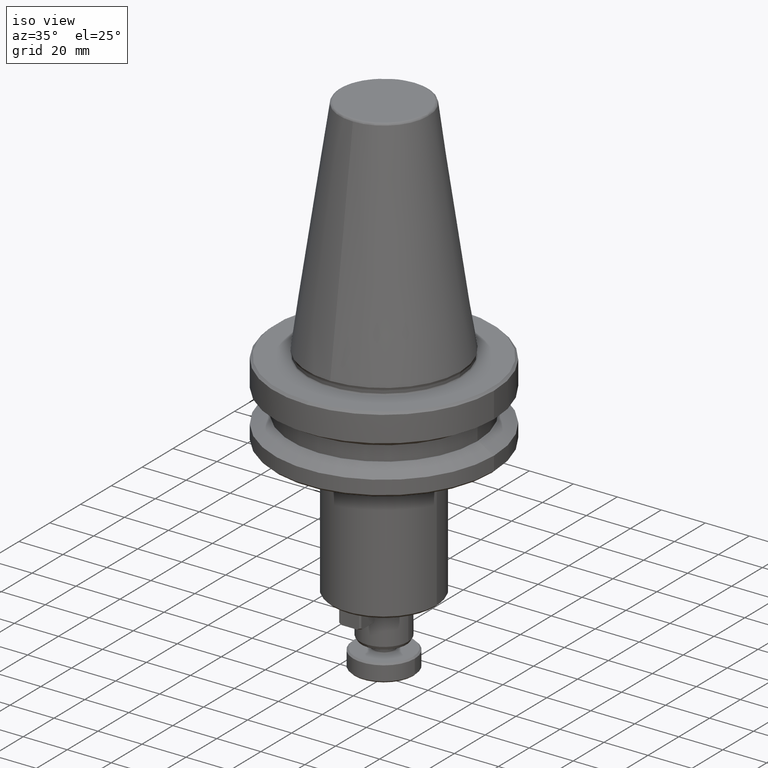
[diagram: clean part render]
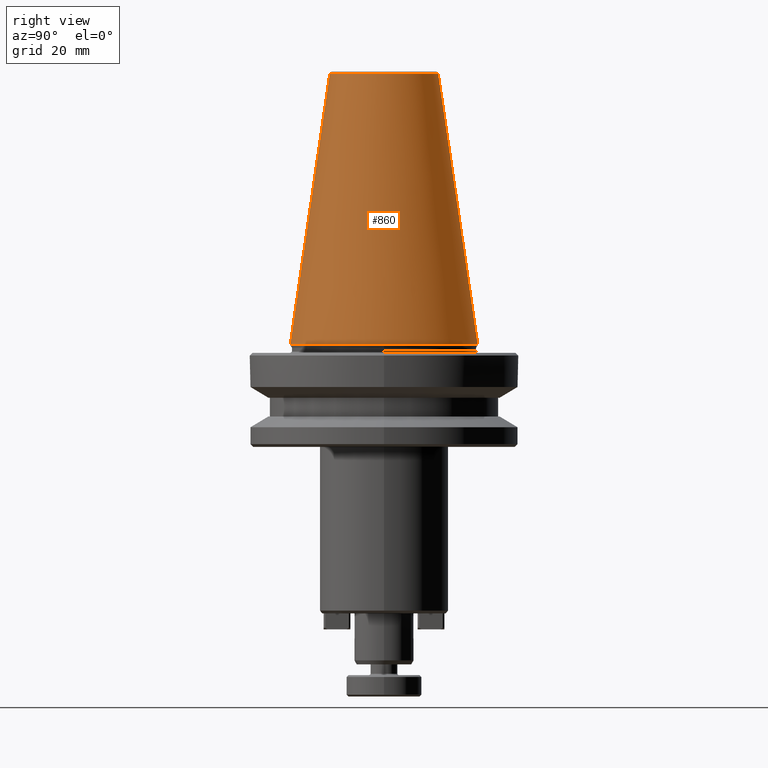
[diagram: tour spotlight — one face highlighted and labeled with its STEP entity id]
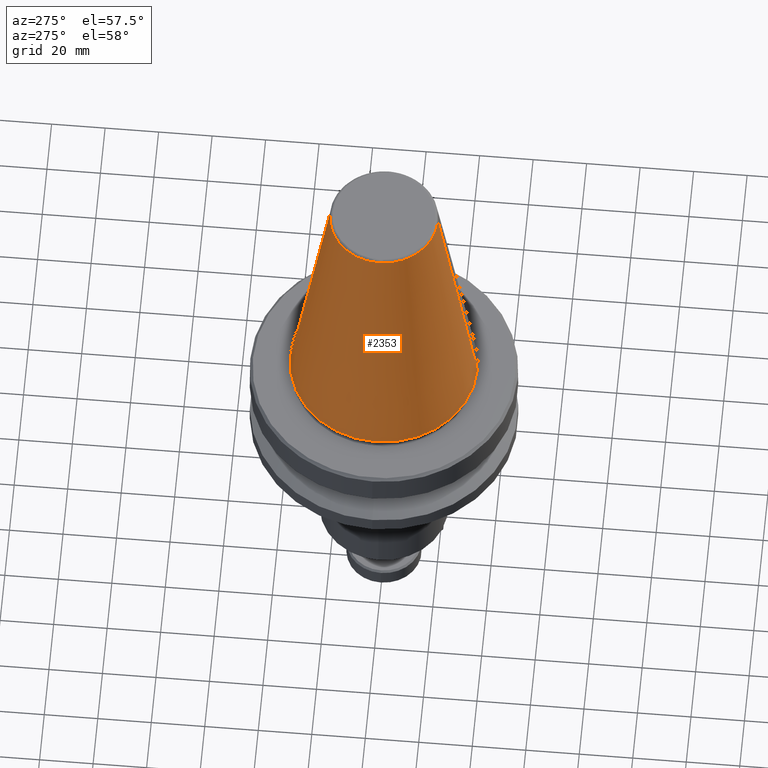
[diagram: tour spotlight — one face highlighted and labeled with its STEP entity id]
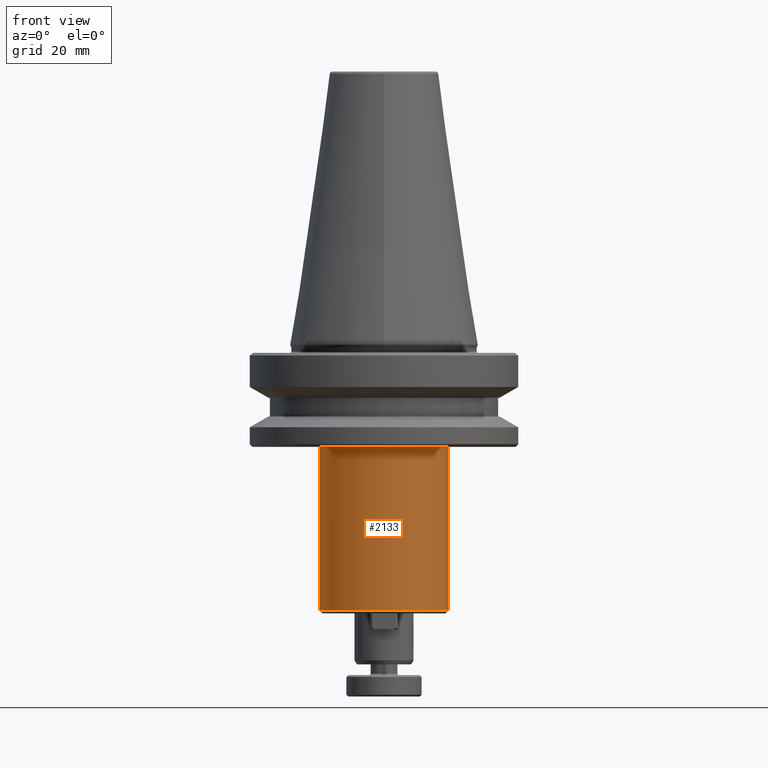
[diagram: tour spotlight — one face highlighted and labeled with its STEP entity id]
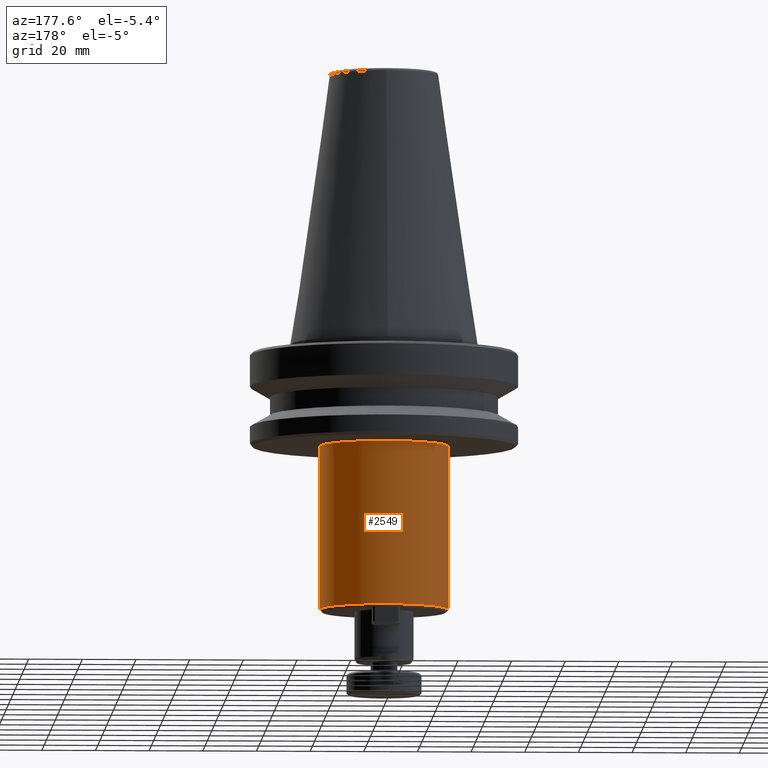
[diagram: tour spotlight — one face highlighted and labeled with its STEP entity id]
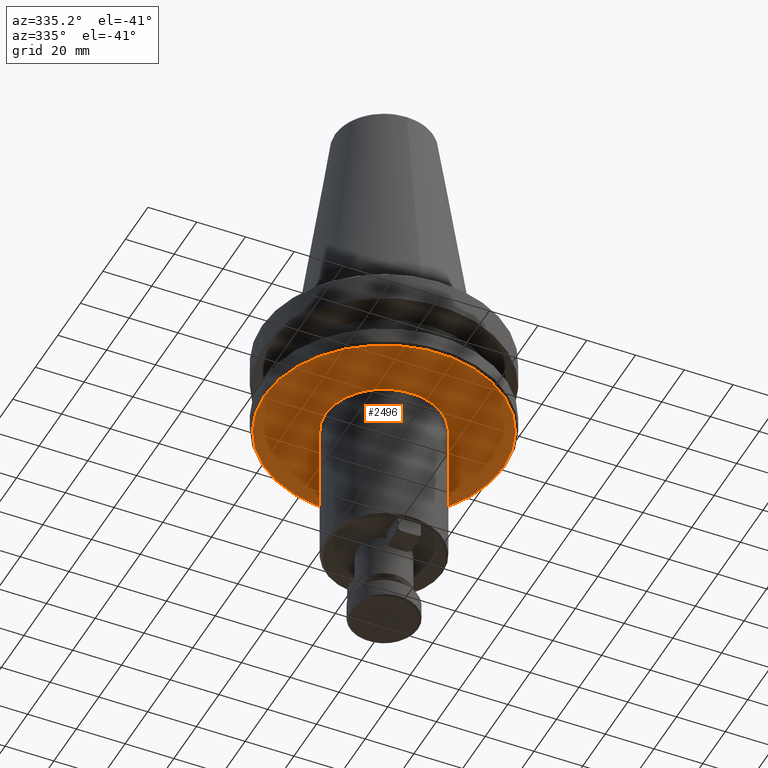
[diagram: tour spotlight — one face highlighted and labeled with its STEP entity id]
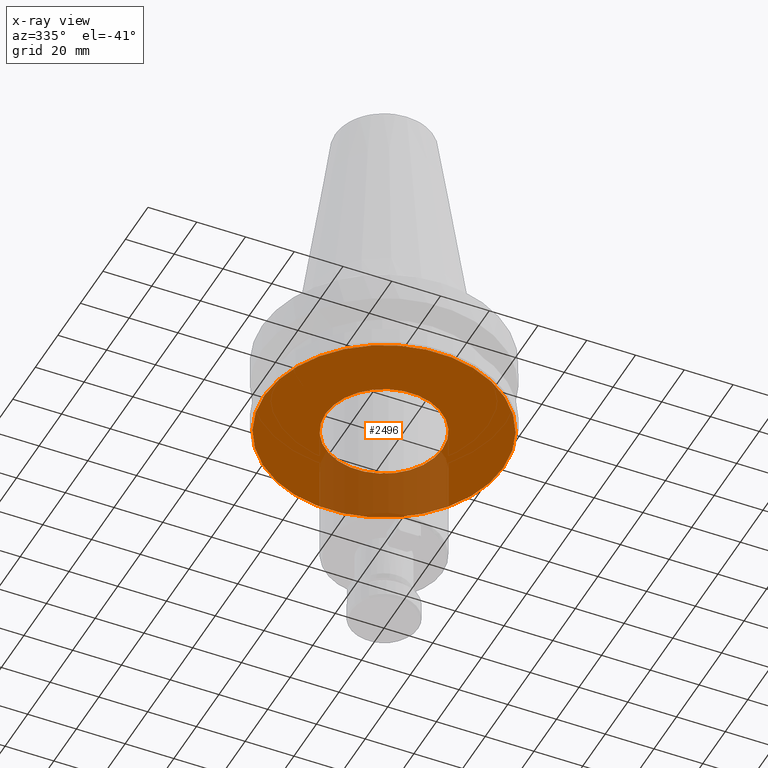
[diagram: x-ray of the same camera — body ghosted, this tour face saturated]
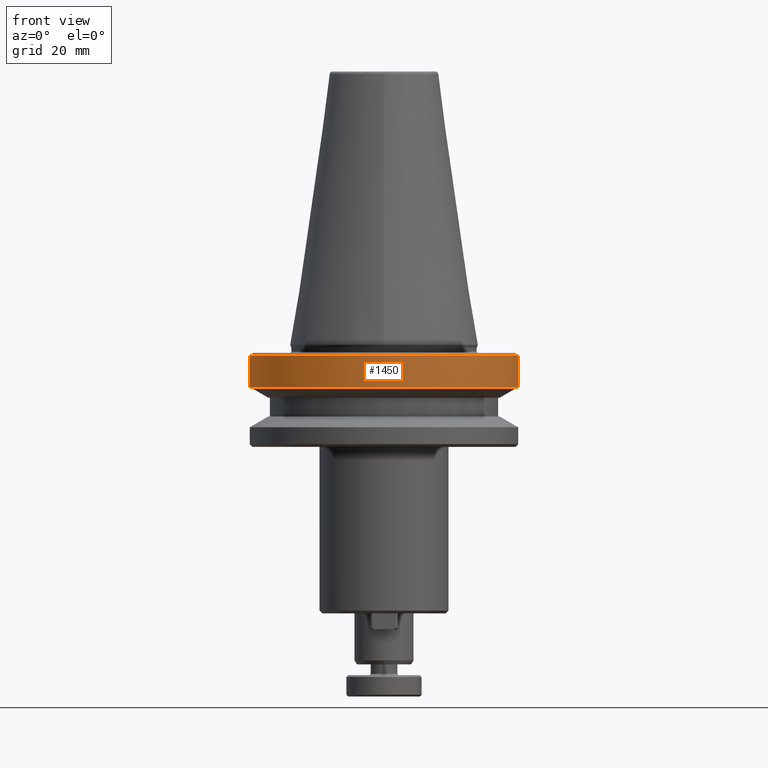
[diagram: tour spotlight — one face highlighted and labeled with its STEP entity id]
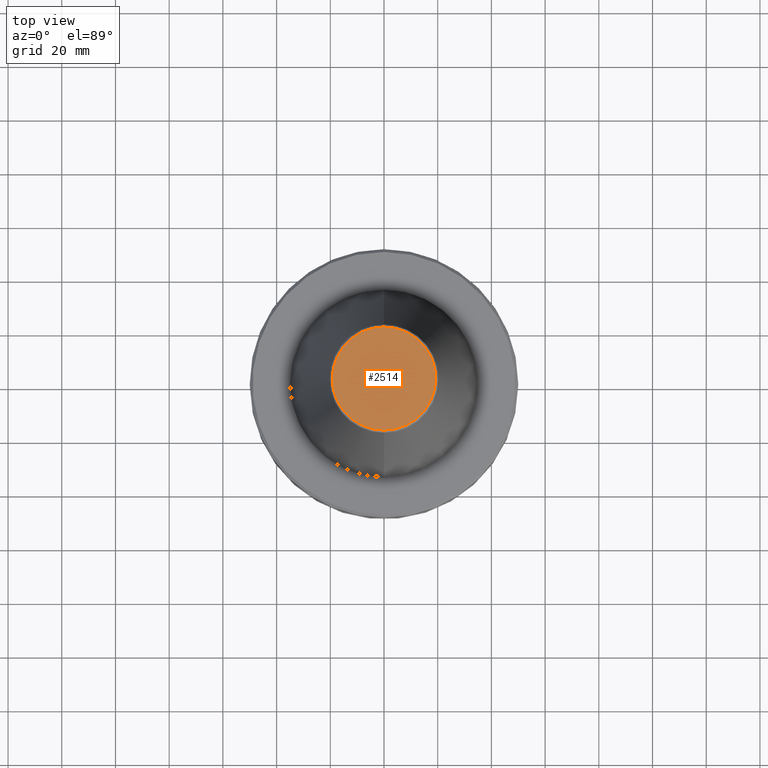
[diagram: tour spotlight — one face highlighted and labeled with its STEP entity id]
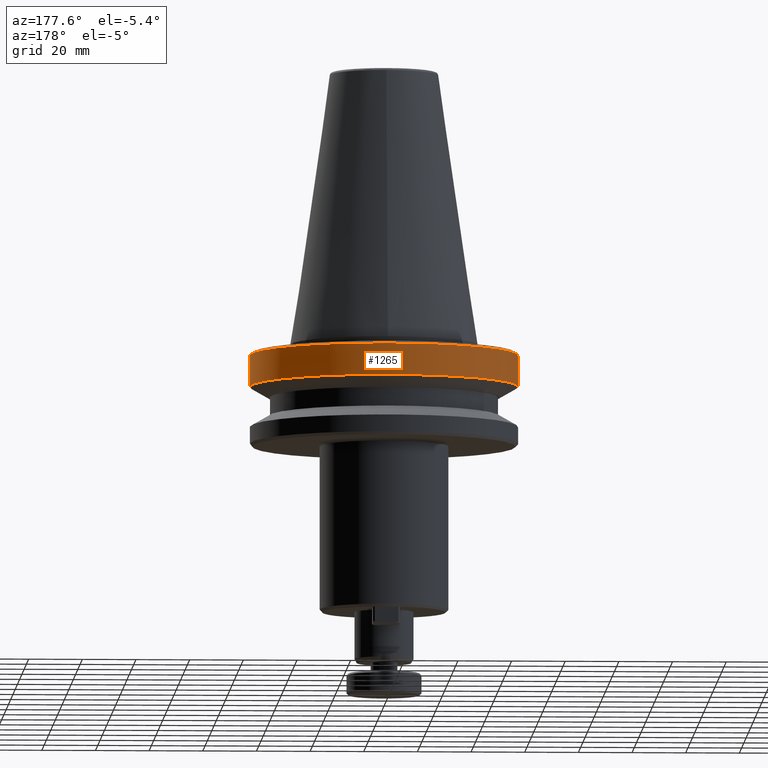
[diagram: tour spotlight — one face highlighted and labeled with its STEP entity id]
A machine part: a face-by-face anatomy tour. The part has 77 B-rep faces; the first image is the clean iso view, then the 8 largest visible faces are spotlighted one at a time (largest first), each with its STEP entity span.

Face 1 — right view, entity #860. In plain terms, the highlighted conical surface has half-angle 8.297 deg.
Definition (entity closure, byte-faithful):
#137 = ORIENTED_EDGE ( 'NONE', *, *, #2389, .T. ) ;
#185 = VERTEX_POINT ( 'NONE', #1907 ) ;
#282 = VECTOR ( 'NONE', #983, 1000.000000000000000 ) ;
#334 = LINE ( 'NONE', #2466, #2479 ) ;
#348 = AXIS2_PLACEMENT_3D ( 'NONE', #1062, #1058, #1053 ) ;
#399 = DIRECTION ( 'NONE',  ( -1.000000000000000000, 0.0000000000000000000, 0.0000000000000000000 ) ) ;
#718 = CARTESIAN_POINT ( 'NONE',  ( 20.20381605152244500, 0.0000000000000000000, 100.9443082272672700 ) ) ;
#772 = CIRCLE ( 'NONE', #1311, 34.92499999999999700 ) ;
#860 = ADVANCED_FACE ( 'NONE', ( #2004 ), #1942, .T. ) ;
#886 = CARTESIAN_POINT ( 'NONE',  ( 0.0000000000000000000, 20.20381605152244500, 100.9443082272672700 ) ) ;
#913 = EDGE_CURVE ( 'NONE', #2155, #185, #772, .T. ) ;
#963 = CARTESIAN_POINT ( 'NONE',  ( 0.0000000000000000000, 34.92499999999999700, -1.235024670767087400E-014 ) ) ;
#983 = DIRECTION ( 'NONE',  ( 0.0000000000000000000, 0.1443082272673000500, -0.9895327864921754600 ) ) ;
#1053 = DIRECTION ( 'NONE',  ( -1.000000000000000000, 0.0000000000000000000, 0.0000000000000000000 ) ) ;
#1058 = DIRECTION ( 'NONE',  ( 0.0000000000000000000, 0.0000000000000000000, -1.000000000000000000 ) ) ;
#1062 = CARTESIAN_POINT ( 'NONE',  ( 0.0000000000000000000, 0.0000000000000000000, 100.9443082272672700 ) ) ;
#1072 = CIRCLE ( 'NONE', #1921, 20.20381605152244500 ) ;
#1117 = EDGE_CURVE ( 'NONE', #185, #1779, #2593, .T. ) ;
#1162 = CARTESIAN_POINT ( 'NONE',  ( 3.375666405914009500E-015, -20.20381605152244500, 100.9443082272672700 ) ) ;
#1259 = VERTEX_POINT ( 'NONE', #1162 ) ;
#1299 = DIRECTION ( 'NONE',  ( -1.000000000000000000, 0.0000000000000000000, -3.611427007686981100E-016 ) ) ;
#1300 = DIRECTION ( 'NONE',  ( -0.0000000000000000000, -0.0000000000000000000, 1.000000000000000000 ) ) ;
#1304 = CARTESIAN_POINT ( 'NONE',  ( 0.0000000000000000000, 0.0000000000000000000, 0.0000000000000000000 ) ) ;
#1311 = AXIS2_PLACEMENT_3D ( 'NONE', #1537, #1536, #1534 ) ;
#1401 = EDGE_CURVE ( 'NONE', #1455, #1779, #1483, .T. ) ;
#1455 = VERTEX_POINT ( 'NONE', #886 ) ;
#1483 = LINE ( 'NONE', #963, #282 ) ;
#1517 = AXIS2_PLACEMENT_3D ( 'NONE', #2240, #1704, #1790 ) ;
#1534 = DIRECTION ( 'NONE',  ( -1.000000000000000000, 0.0000000000000000000, -3.611427007686981100E-016 ) ) ;
#1536 = DIRECTION ( 'NONE',  ( -0.0000000000000000000, -0.0000000000000000000, 1.000000000000000000 ) ) ;
#1537 = CARTESIAN_POINT ( 'NONE',  ( 0.0000000000000000000, 0.0000000000000000000, 0.0000000000000000000 ) ) ;
#1557 = ORIENTED_EDGE ( 'NONE', *, *, #1728, .T. ) ;
#1704 = DIRECTION ( 'NONE',  ( 0.0000000000000000000, 2.205789485339712300E-032, -1.000000000000000000 ) ) ;
#1726 = DIRECTION ( 'NONE',  ( 0.0000000000000000000, 0.0000000000000000000, -1.000000000000000000 ) ) ;
#1728 = EDGE_CURVE ( 'NONE', #2497, #1259, #1072, .T. ) ;
#1779 = VERTEX_POINT ( 'NONE', #2517 ) ;
#1789 = EDGE_CURVE ( 'NONE', #1259, #2155, #334, .T. ) ;
#1790 = DIRECTION ( 'NONE',  ( 0.0000000000000000000, 1.000000000000000000, 4.411578970679424000E-032 ) ) ;
#1800 = ORIENTED_EDGE ( 'NONE', *, *, #1401, .F. ) ;
#1819 = CIRCLE ( 'NONE', #348, 20.20381605152244500 ) ;
#1886 = CARTESIAN_POINT ( 'NONE',  ( 4.277078946022130900E-015, -34.92499999999999700, 0.0000000000000000000 ) ) ;
#1907 = CARTESIAN_POINT ( 'NONE',  ( 34.92499999999999700, 0.0000000000000000000, 0.0000000000000000000 ) ) ;
#1921 = AXIS2_PLACEMENT_3D ( 'NONE', #2544, #1726, #399 ) ;
#1942 = CONICAL_SURFACE ( 'NONE', #1517, 34.92499999999999700, 0.1448138465474120300 ) ;
#1954 = ORIENTED_EDGE ( 'NONE', *, *, #1117, .T. ) ;
#2004 = FACE_OUTER_BOUND ( 'NONE', #2139, .T. ) ;
#2139 = EDGE_LOOP ( 'NONE', ( #137, #1557, #2607, #2674, #1954, #1800 ) ) ;
#2155 = VERTEX_POINT ( 'NONE', #1886 ) ;
#2240 = CARTESIAN_POINT ( 'NONE',  ( 0.0000000000000000000, 0.0000000000000000000, -1.235024670767087600E-014 ) ) ;
#2344 = AXIS2_PLACEMENT_3D ( 'NONE', #1304, #1300, #1299 ) ;
#2389 = EDGE_CURVE ( 'NONE', #1455, #2497, #1819, .T. ) ;
#2426 = DIRECTION ( 'NONE',  ( 1.767266086135278000E-017, -0.1443082272673000500, -0.9895327864921754600 ) ) ;
#2466 = CARTESIAN_POINT ( 'NONE',  ( 4.277078946022130900E-015, -34.92499999999999700, -1.235024670767087800E-014 ) ) ;
#2479 = VECTOR ( 'NONE', #2426, 1000.000000000000000 ) ;
#2497 = VERTEX_POINT ( 'NONE', #718 ) ;
#2517 = CARTESIAN_POINT ( 'NONE',  ( 0.0000000000000000000, 34.92499999999999700, 0.0000000000000000000 ) ) ;
#2544 = CARTESIAN_POINT ( 'NONE',  ( 0.0000000000000000000, 0.0000000000000000000, 100.9443082272672700 ) ) ;
#2593 = CIRCLE ( 'NONE', #2344, 34.92499999999999700 ) ;
#2607 = ORIENTED_EDGE ( 'NONE', *, *, #1789, .T. ) ;
#2674 = ORIENTED_EDGE ( 'NONE', *, *, #913, .T. ) ;

Face 2 — auxiliary view, entity #2353. In plain terms, the highlighted conical surface has half-angle 8.297 deg.
Definition (entity closure, byte-faithful):
#128 = VERTEX_POINT ( 'NONE', #2420 ) ;
#214 = DIRECTION ( 'NONE',  ( -1.000000000000000000, 0.0000000000000000000, -3.611427007686981100E-016 ) ) ;
#215 = DIRECTION ( 'NONE',  ( -0.0000000000000000000, -0.0000000000000000000, 1.000000000000000000 ) ) ;
#217 = CARTESIAN_POINT ( 'NONE',  ( 0.0000000000000000000, 0.0000000000000000000, 0.0000000000000000000 ) ) ;
#282 = VECTOR ( 'NONE', #983, 1000.000000000000000 ) ;
#334 = LINE ( 'NONE', #2466, #2479 ) ;
#398 = ORIENTED_EDGE ( 'NONE', *, *, #1098, .T. ) ;
#728 = ORIENTED_EDGE ( 'NONE', *, *, #1789, .F. ) ;
#886 = CARTESIAN_POINT ( 'NONE',  ( 0.0000000000000000000, 20.20381605152244500, 100.9443082272672700 ) ) ;
#929 = DIRECTION ( 'NONE',  ( -1.000000000000000000, 0.0000000000000000000, 0.0000000000000000000 ) ) ;
#932 = DIRECTION ( 'NONE',  ( 0.0000000000000000000, 0.0000000000000000000, -1.000000000000000000 ) ) ;
#935 = CARTESIAN_POINT ( 'NONE',  ( 0.0000000000000000000, 0.0000000000000000000, 100.9443082272672700 ) ) ;
#963 = CARTESIAN_POINT ( 'NONE',  ( 0.0000000000000000000, 34.92499999999999700, -1.235024670767087400E-014 ) ) ;
#983 = DIRECTION ( 'NONE',  ( 0.0000000000000000000, 0.1443082272673000500, -0.9895327864921754600 ) ) ;
#1007 = AXIS2_PLACEMENT_3D ( 'NONE', #1257, #1250, #1467 ) ;
#1098 = EDGE_CURVE ( 'NONE', #128, #1455, #1296, .T. ) ;
#1138 = CIRCLE ( 'NONE', #2655, 34.92499999999999700 ) ;
#1162 = CARTESIAN_POINT ( 'NONE',  ( 3.375666405914009500E-015, -20.20381605152244500, 100.9443082272672700 ) ) ;
#1250 = DIRECTION ( 'NONE',  ( 0.0000000000000000000, 2.205789485339712300E-032, -1.000000000000000000 ) ) ;
#1257 = CARTESIAN_POINT ( 'NONE',  ( 0.0000000000000000000, 0.0000000000000000000, -1.235024670767087600E-014 ) ) ;
#1259 = VERTEX_POINT ( 'NONE', #1162 ) ;
#1296 = CIRCLE ( 'NONE', #2267, 20.20381605152244500 ) ;
#1330 = DIRECTION ( 'NONE',  ( -1.000000000000000000, 0.0000000000000000000, 0.0000000000000000000 ) ) ;
#1333 = DIRECTION ( 'NONE',  ( 0.0000000000000000000, 0.0000000000000000000, -1.000000000000000000 ) ) ;
#1334 = CARTESIAN_POINT ( 'NONE',  ( 0.0000000000000000000, 0.0000000000000000000, 100.9443082272672700 ) ) ;
#1352 = CONICAL_SURFACE ( 'NONE', #1007, 34.92499999999999700, 0.1448138465474120300 ) ;
#1380 = EDGE_LOOP ( 'NONE', ( #728, #2577, #398, #2491, #2680, #1785 ) ) ;
#1401 = EDGE_CURVE ( 'NONE', #1455, #1779, #1483, .T. ) ;
#1403 = CARTESIAN_POINT ( 'NONE',  ( -34.92499999999999700, 4.277078946022130900E-015, 0.0000000000000000000 ) ) ;
#1413 = EDGE_CURVE ( 'NONE', #1259, #128, #2494, .T. ) ;
#1455 = VERTEX_POINT ( 'NONE', #886 ) ;
#1467 = DIRECTION ( 'NONE',  ( 0.0000000000000000000, 1.000000000000000000, 4.411578970679424000E-032 ) ) ;
#1483 = LINE ( 'NONE', #963, #282 ) ;
#1520 = CIRCLE ( 'NONE', #2696, 34.92499999999999700 ) ;
#1643 = EDGE_CURVE ( 'NONE', #2329, #2155, #1138, .T. ) ;
#1720 = FACE_OUTER_BOUND ( 'NONE', #1380, .T. ) ;
#1770 = EDGE_CURVE ( 'NONE', #1779, #2329, #1520, .T. ) ;
#1779 = VERTEX_POINT ( 'NONE', #2517 ) ;
#1785 = ORIENTED_EDGE ( 'NONE', *, *, #1643, .T. ) ;
#1789 = EDGE_CURVE ( 'NONE', #1259, #2155, #334, .T. ) ;
#1886 = CARTESIAN_POINT ( 'NONE',  ( 4.277078946022130900E-015, -34.92499999999999700, 0.0000000000000000000 ) ) ;
#2155 = VERTEX_POINT ( 'NONE', #1886 ) ;
#2267 = AXIS2_PLACEMENT_3D ( 'NONE', #1334, #1333, #1330 ) ;
#2329 = VERTEX_POINT ( 'NONE', #1403 ) ;
#2353 = ADVANCED_FACE ( 'NONE', ( #1720 ), #1352, .T. ) ;
#2420 = CARTESIAN_POINT ( 'NONE',  ( -20.20381605152244500, 2.474253865805887700E-015, 100.9443082272672700 ) ) ;
#2426 = DIRECTION ( 'NONE',  ( 1.767266086135278000E-017, -0.1443082272673000500, -0.9895327864921754600 ) ) ;
#2452 = DIRECTION ( 'NONE',  ( -1.000000000000000000, -8.881784197001252300E-016, -3.611427007686981100E-016 ) ) ;
#2458 = DIRECTION ( 'NONE',  ( -0.0000000000000000000, -0.0000000000000000000, 1.000000000000000000 ) ) ;
#2463 = CARTESIAN_POINT ( 'NONE',  ( 0.0000000000000000000, 0.0000000000000000000, 0.0000000000000000000 ) ) ;
#2466 = CARTESIAN_POINT ( 'NONE',  ( 4.277078946022130900E-015, -34.92499999999999700, -1.235024670767087800E-014 ) ) ;
#2479 = VECTOR ( 'NONE', #2426, 1000.000000000000000 ) ;
#2491 = ORIENTED_EDGE ( 'NONE', *, *, #1401, .T. ) ;
#2494 = CIRCLE ( 'NONE', #2676, 20.20381605152244500 ) ;
#2517 = CARTESIAN_POINT ( 'NONE',  ( 0.0000000000000000000, 34.92499999999999700, 0.0000000000000000000 ) ) ;
#2577 = ORIENTED_EDGE ( 'NONE', *, *, #1413, .T. ) ;
#2655 = AXIS2_PLACEMENT_3D ( 'NONE', #217, #215, #214 ) ;
#2676 = AXIS2_PLACEMENT_3D ( 'NONE', #935, #932, #929 ) ;
#2680 = ORIENTED_EDGE ( 'NONE', *, *, #1770, .T. ) ;
#2696 = AXIS2_PLACEMENT_3D ( 'NONE', #2463, #2458, #2452 ) ;

Face 3 — front view, entity #2133. In plain terms, the highlighted cylindrical surface (partial cylindrical patch) has radius 24 mm, axis along (0, 0, 1).
Definition (entity closure, byte-faithful):
#10 = VERTEX_POINT ( 'NONE', #2490 ) ;
#78 = VECTOR ( 'NONE', #1661, 1000.000000000000000 ) ;
#231 = CIRCLE ( 'NONE', #1859, 24.00000000000000000 ) ;
#256 = VERTEX_POINT ( 'NONE', #2176 ) ;
#408 = EDGE_CURVE ( 'NONE', #1144, #10, #2046, .T. ) ;
#483 = ORIENTED_EDGE ( 'NONE', *, *, #408, .T. ) ;
#489 = VECTOR ( 'NONE', #1869, 1000.000000000000000 ) ;
#514 = FACE_OUTER_BOUND ( 'NONE', #1766, .T. ) ;
#958 = ORIENTED_EDGE ( 'NONE', *, *, #2106, .T. ) ;
#1144 = VERTEX_POINT ( 'NONE', #1291 ) ;
#1291 = CARTESIAN_POINT ( 'NONE',  ( 24.00000000000001400, 0.0000000000000000000, -98.99999999999998600 ) ) ;
#1406 = ORIENTED_EDGE ( 'NONE', *, *, #2268, .F. ) ;
#1603 = CARTESIAN_POINT ( 'NONE',  ( -24.00000000000000000, 2.939152317953647900E-015, 118.5507178974871000 ) ) ;
#1645 = DIRECTION ( 'NONE',  ( 1.000000000000000000, 0.0000000000000000000, 0.0000000000000000000 ) ) ;
#1649 = DIRECTION ( 'NONE',  ( 0.0000000000000000000, 0.0000000000000000000, 1.000000000000000000 ) ) ;
#1652 = CARTESIAN_POINT ( 'NONE',  ( 0.0000000000000000000, 0.0000000000000000000, -98.99999999999998600 ) ) ;
#1661 = DIRECTION ( 'NONE',  ( 0.0000000000000000000, 0.0000000000000000000, 1.000000000000000000 ) ) ;
#1766 = EDGE_LOOP ( 'NONE', ( #1406, #2264, #483, #958 ) ) ;
#1815 = CARTESIAN_POINT ( 'NONE',  ( 24.00000000000000000, 0.0000000000000000000, 118.5507178974871000 ) ) ;
#1831 = LINE ( 'NONE', #1603, #78 ) ;
#1859 = AXIS2_PLACEMENT_3D ( 'NONE', #1652, #1649, #1645 ) ;
#1869 = DIRECTION ( 'NONE',  ( 0.0000000000000000000, 0.0000000000000000000, 1.000000000000000000 ) ) ;
#1873 = AXIS2_PLACEMENT_3D ( 'NONE', #2010, #1972, #1965 ) ;
#1965 = DIRECTION ( 'NONE',  ( 1.000000000000000000, 0.0000000000000000000, 0.0000000000000000000 ) ) ;
#1972 = DIRECTION ( 'NONE',  ( 0.0000000000000000000, 0.0000000000000000000, 1.000000000000000000 ) ) ;
#1975 = DIRECTION ( 'NONE',  ( 1.000000000000000000, 0.0000000000000000000, 0.0000000000000000000 ) ) ;
#1980 = DIRECTION ( 'NONE',  ( -0.0000000000000000000, -0.0000000000000000000, -1.000000000000000000 ) ) ;
#1983 = CARTESIAN_POINT ( 'NONE',  ( 0.0000000000000000000, 0.0000000000000000000, -37.99999999999999300 ) ) ;
#1989 = CARTESIAN_POINT ( 'NONE',  ( -24.00000000000001400, 2.939152317953649500E-015, -98.99999999999998600 ) ) ;
#2010 = CARTESIAN_POINT ( 'NONE',  ( 0.0000000000000000000, 0.0000000000000000000, 118.5507178974871000 ) ) ;
#2026 = AXIS2_PLACEMENT_3D ( 'NONE', #1983, #1980, #1975 ) ;
#2046 = LINE ( 'NONE', #1815, #489 ) ;
#2106 = EDGE_CURVE ( 'NONE', #10, #256, #2635, .T. ) ;
#2131 = VERTEX_POINT ( 'NONE', #1989 ) ;
#2133 = ADVANCED_FACE ( 'NONE', ( #514 ), #2567, .T. ) ;
#2176 = CARTESIAN_POINT ( 'NONE',  ( -24.00000000000000000, 2.939152317953647900E-015, -37.99999999999999300 ) ) ;
#2238 = EDGE_CURVE ( 'NONE', #2131, #1144, #231, .T. ) ;
#2264 = ORIENTED_EDGE ( 'NONE', *, *, #2238, .T. ) ;
#2268 = EDGE_CURVE ( 'NONE', #2131, #256, #1831, .T. ) ;
#2490 = CARTESIAN_POINT ( 'NONE',  ( 24.00000000000000000, 0.0000000000000000000, -37.99999999999999300 ) ) ;
#2567 = CYLINDRICAL_SURFACE ( 'NONE', #1873, 24.00000000000000000 ) ;
#2635 = CIRCLE ( 'NONE', #2026, 24.00000000000000000 ) ;

Face 4 — auxiliary view, entity #2549. In plain terms, the highlighted cylindrical surface (partial cylindrical patch) has radius 24 mm, axis along (0, 0, 1).
Definition (entity closure, byte-faithful):
#10 = VERTEX_POINT ( 'NONE', #2490 ) ;
#78 = VECTOR ( 'NONE', #1661, 1000.000000000000000 ) ;
#184 = CYLINDRICAL_SURFACE ( 'NONE', #2418, 24.00000000000000000 ) ;
#256 = VERTEX_POINT ( 'NONE', #2176 ) ;
#351 = EDGE_CURVE ( 'NONE', #256, #10, #606, .T. ) ;
#408 = EDGE_CURVE ( 'NONE', #1144, #10, #2046, .T. ) ;
#489 = VECTOR ( 'NONE', #1869, 1000.000000000000000 ) ;
#558 = DIRECTION ( 'NONE',  ( 0.0000000000000000000, 0.0000000000000000000, 1.000000000000000000 ) ) ;
#563 = DIRECTION ( 'NONE',  ( 1.000000000000000000, 0.0000000000000000000, 0.0000000000000000000 ) ) ;
#571 = CARTESIAN_POINT ( 'NONE',  ( 0.0000000000000000000, 0.0000000000000000000, 118.5507178974871000 ) ) ;
#606 = CIRCLE ( 'NONE', #675, 24.00000000000000000 ) ;
#675 = AXIS2_PLACEMENT_3D ( 'NONE', #1634, #1803, #1780 ) ;
#938 = FACE_OUTER_BOUND ( 'NONE', #1459, .T. ) ;
#1144 = VERTEX_POINT ( 'NONE', #1291 ) ;
#1291 = CARTESIAN_POINT ( 'NONE',  ( 24.00000000000001400, 0.0000000000000000000, -98.99999999999998600 ) ) ;
#1301 = CIRCLE ( 'NONE', #1466, 24.00000000000000000 ) ;
#1459 = EDGE_LOOP ( 'NONE', ( #2168, #2137, #2090, #1967 ) ) ;
#1466 = AXIS2_PLACEMENT_3D ( 'NONE', #1515, #1507, #1502 ) ;
#1502 = DIRECTION ( 'NONE',  ( 1.000000000000000000, 0.0000000000000000000, 0.0000000000000000000 ) ) ;
#1507 = DIRECTION ( 'NONE',  ( 0.0000000000000000000, 0.0000000000000000000, 1.000000000000000000 ) ) ;
#1515 = CARTESIAN_POINT ( 'NONE',  ( 0.0000000000000000000, 0.0000000000000000000, -98.99999999999998600 ) ) ;
#1603 = CARTESIAN_POINT ( 'NONE',  ( -24.00000000000000000, 2.939152317953647900E-015, 118.5507178974871000 ) ) ;
#1634 = CARTESIAN_POINT ( 'NONE',  ( 0.0000000000000000000, 0.0000000000000000000, -37.99999999999999300 ) ) ;
#1661 = DIRECTION ( 'NONE',  ( 0.0000000000000000000, 0.0000000000000000000, 1.000000000000000000 ) ) ;
#1780 = DIRECTION ( 'NONE',  ( 1.000000000000000000, 0.0000000000000000000, 0.0000000000000000000 ) ) ;
#1803 = DIRECTION ( 'NONE',  ( -0.0000000000000000000, -0.0000000000000000000, -1.000000000000000000 ) ) ;
#1815 = CARTESIAN_POINT ( 'NONE',  ( 24.00000000000000000, 0.0000000000000000000, 118.5507178974871000 ) ) ;
#1831 = LINE ( 'NONE', #1603, #78 ) ;
#1869 = DIRECTION ( 'NONE',  ( 0.0000000000000000000, 0.0000000000000000000, 1.000000000000000000 ) ) ;
#1967 = ORIENTED_EDGE ( 'NONE', *, *, #408, .F. ) ;
#1989 = CARTESIAN_POINT ( 'NONE',  ( -24.00000000000001400, 2.939152317953649500E-015, -98.99999999999998600 ) ) ;
#2046 = LINE ( 'NONE', #1815, #489 ) ;
#2090 = ORIENTED_EDGE ( 'NONE', *, *, #351, .T. ) ;
#2131 = VERTEX_POINT ( 'NONE', #1989 ) ;
#2137 = ORIENTED_EDGE ( 'NONE', *, *, #2268, .T. ) ;
#2168 = ORIENTED_EDGE ( 'NONE', *, *, #2271, .T. ) ;
#2176 = CARTESIAN_POINT ( 'NONE',  ( -24.00000000000000000, 2.939152317953647900E-015, -37.99999999999999300 ) ) ;
#2268 = EDGE_CURVE ( 'NONE', #2131, #256, #1831, .T. ) ;
#2271 = EDGE_CURVE ( 'NONE', #1144, #2131, #1301, .T. ) ;
#2418 = AXIS2_PLACEMENT_3D ( 'NONE', #571, #558, #563 ) ;
#2490 = CARTESIAN_POINT ( 'NONE',  ( 24.00000000000000000, 0.0000000000000000000, -37.99999999999999300 ) ) ;
#2549 = ADVANCED_FACE ( 'NONE', ( #938 ), #184, .T. ) ;

Face 5 — auxiliary view, entity #2496. An x-ray twin of the same camera follows (body ghosted, this face saturated) — the face is partly hidden behind the body. In plain terms, the highlighted planar face has unit normal (0, 0, 1).
Definition (entity closure, byte-faithful):
#10 = VERTEX_POINT ( 'NONE', #2490 ) ;
#176 = ORIENTED_EDGE ( 'NONE', *, *, #2301, .F. ) ;
#206 = CARTESIAN_POINT ( 'NONE',  ( -49.00000000000000000, 6.062001655779398500E-015, -38.00000000000002100 ) ) ;
#256 = VERTEX_POINT ( 'NONE', #2176 ) ;
#351 = EDGE_CURVE ( 'NONE', #256, #10, #606, .T. ) ;
#606 = CIRCLE ( 'NONE', #675, 24.00000000000000000 ) ;
#675 = AXIS2_PLACEMENT_3D ( 'NONE', #1634, #1803, #1780 ) ;
#678 = DIRECTION ( 'NONE',  ( 1.000000000000000000, 0.0000000000000000000, -0.0000000000000000000 ) ) ;
#688 = DIRECTION ( 'NONE',  ( 0.0000000000000000000, 0.0000000000000000000, 1.000000000000000000 ) ) ;
#690 = PLANE ( 'NONE',  #2433 ) ;
#699 = CARTESIAN_POINT ( 'NONE',  ( 0.0000000000000000000, 49.00000000000000000, -38.00000000000000700 ) ) ;
#740 = AXIS2_PLACEMENT_3D ( 'NONE', #809, #804, #802 ) ;
#802 = DIRECTION ( 'NONE',  ( 1.000000000000000000, 0.0000000000000000000, 0.0000000000000000000 ) ) ;
#804 = DIRECTION ( 'NONE',  ( 0.0000000000000000000, -0.0000000000000000000, 1.000000000000000000 ) ) ;
#809 = CARTESIAN_POINT ( 'NONE',  ( 0.0000000000000000000, 0.0000000000000000000, -38.00000000000002100 ) ) ;
#871 = CARTESIAN_POINT ( 'NONE',  ( 49.00000000000000000, 0.0000000000000000000, -38.00000000000002100 ) ) ;
#1004 = FACE_OUTER_BOUND ( 'NONE', #1281, .T. ) ;
#1269 = AXIS2_PLACEMENT_3D ( 'NONE', #1440, #1438, #1437 ) ;
#1281 = EDGE_LOOP ( 'NONE', ( #176, #1756 ) ) ;
#1347 = EDGE_LOOP ( 'NONE', ( #2016, #2356 ) ) ;
#1437 = DIRECTION ( 'NONE',  ( 1.000000000000000000, 0.0000000000000000000, 0.0000000000000000000 ) ) ;
#1438 = DIRECTION ( 'NONE',  ( 0.0000000000000000000, -0.0000000000000000000, 1.000000000000000000 ) ) ;
#1440 = CARTESIAN_POINT ( 'NONE',  ( 0.0000000000000000000, 0.0000000000000000000, -38.00000000000002100 ) ) ;
#1485 = VERTEX_POINT ( 'NONE', #871 ) ;
#1634 = CARTESIAN_POINT ( 'NONE',  ( 0.0000000000000000000, 0.0000000000000000000, -37.99999999999999300 ) ) ;
#1681 = VERTEX_POINT ( 'NONE', #206 ) ;
#1708 = CIRCLE ( 'NONE', #740, 49.00000000000000000 ) ;
#1756 = ORIENTED_EDGE ( 'NONE', *, *, #2456, .F. ) ;
#1780 = DIRECTION ( 'NONE',  ( 1.000000000000000000, 0.0000000000000000000, 0.0000000000000000000 ) ) ;
#1803 = DIRECTION ( 'NONE',  ( -0.0000000000000000000, -0.0000000000000000000, -1.000000000000000000 ) ) ;
#1975 = DIRECTION ( 'NONE',  ( 1.000000000000000000, 0.0000000000000000000, 0.0000000000000000000 ) ) ;
#1980 = DIRECTION ( 'NONE',  ( -0.0000000000000000000, -0.0000000000000000000, -1.000000000000000000 ) ) ;
#1983 = CARTESIAN_POINT ( 'NONE',  ( 0.0000000000000000000, 0.0000000000000000000, -37.99999999999999300 ) ) ;
#2016 = ORIENTED_EDGE ( 'NONE', *, *, #2106, .F. ) ;
#2021 = FACE_BOUND ( 'NONE', #1347, .T. ) ;
#2026 = AXIS2_PLACEMENT_3D ( 'NONE', #1983, #1980, #1975 ) ;
#2106 = EDGE_CURVE ( 'NONE', #10, #256, #2635, .T. ) ;
#2176 = CARTESIAN_POINT ( 'NONE',  ( -24.00000000000000000, 2.939152317953647900E-015, -37.99999999999999300 ) ) ;
#2203 = CIRCLE ( 'NONE', #1269, 49.00000000000000000 ) ;
#2301 = EDGE_CURVE ( 'NONE', #1485, #1681, #2203, .T. ) ;
#2356 = ORIENTED_EDGE ( 'NONE', *, *, #351, .F. ) ;
#2433 = AXIS2_PLACEMENT_3D ( 'NONE', #699, #688, #678 ) ;
#2456 = EDGE_CURVE ( 'NONE', #1681, #1485, #1708, .T. ) ;
#2490 = CARTESIAN_POINT ( 'NONE',  ( 24.00000000000000000, 0.0000000000000000000, -37.99999999999999300 ) ) ;
#2496 = ADVANCED_FACE ( 'NONE', ( #1004, #2021 ), #690, .F. ) ;
#2635 = CIRCLE ( 'NONE', #2026, 24.00000000000000000 ) ;

Face 6 — front view, entity #1450. In plain terms, the highlighted cylindrical surface (partial cylindrical patch) has radius 50 mm, axis along (0, 0, 1).
Definition (entity closure, byte-faithful):
#8 = ORIENTED_EDGE ( 'NONE', *, *, #1743, .F. ) ;
#38 = EDGE_LOOP ( 'NONE', ( #8, #2120, #478, #2594, #770 ) ) ;
#199 = CARTESIAN_POINT ( 'NONE',  ( 6.123233995736766100E-015, -50.00000000000000000, -3.999999999999989800 ) ) ;
#396 = EDGE_CURVE ( 'NONE', #1387, #2513, #793, .T. ) ;
#478 = ORIENTED_EDGE ( 'NONE', *, *, #2134, .T. ) ;
#540 = VERTEX_POINT ( 'NONE', #1675 ) ;
#556 = AXIS2_PLACEMENT_3D ( 'NONE', #1713, #1919, #1916 ) ;
#574 = CARTESIAN_POINT ( 'NONE',  ( 50.00000000000000000, 0.0000000000000000000, -3.999999999999989800 ) ) ;
#631 = EDGE_CURVE ( 'NONE', #1664, #2523, #1442, .T. ) ;
#667 = CARTESIAN_POINT ( 'NONE',  ( 50.00000000000000000, 0.0000000000000000000, -15.70022000322675400 ) ) ;
#739 = CIRCLE ( 'NONE', #2042, 50.00000000000000000 ) ;
#761 = CYLINDRICAL_SURFACE ( 'NONE', #1340, 50.00000000000000000 ) ;
#770 = ORIENTED_EDGE ( 'NONE', *, *, #1949, .F. ) ;
#793 = CIRCLE ( 'NONE', #556, 50.00000000000000000 ) ;
#873 = AXIS2_PLACEMENT_3D ( 'NONE', #1596, #1594, #1592 ) ;
#903 = DIRECTION ( 'NONE',  ( 0.0000000000000000000, 0.0000000000000000000, 1.000000000000000000 ) ) ;
#904 = DIRECTION ( 'NONE',  ( 1.000000000000000000, 0.0000000000000000000, 0.0000000000000000000 ) ) ;
#910 = CARTESIAN_POINT ( 'NONE',  ( 0.0000000000000000000, 0.0000000000000000000, 124.5046326327850600 ) ) ;
#967 = CARTESIAN_POINT ( 'NONE',  ( -50.00000000000000000, 6.123233995736765300E-015, -15.70022000322675400 ) ) ;
#1003 = LINE ( 'NONE', #2542, #2020 ) ;
#1056 = LINE ( 'NONE', #1937, #2119 ) ;
#1340 = AXIS2_PLACEMENT_3D ( 'NONE', #910, #903, #904 ) ;
#1387 = VERTEX_POINT ( 'NONE', #967 ) ;
#1442 = CIRCLE ( 'NONE', #873, 50.00000000000000000 ) ;
#1450 = ADVANCED_FACE ( 'NONE', ( #2370 ), #761, .T. ) ;
#1592 = DIRECTION ( 'NONE',  ( -1.000000000000000000, 0.0000000000000000000, -3.469446951953614200E-017 ) ) ;
#1594 = DIRECTION ( 'NONE',  ( -0.0000000000000000000, -0.0000000000000000000, 1.000000000000000000 ) ) ;
#1596 = CARTESIAN_POINT ( 'NONE',  ( 0.0000000000000000000, 0.0000000000000000000, -3.999999999999989800 ) ) ;
#1664 = VERTEX_POINT ( 'NONE', #199 ) ;
#1675 = CARTESIAN_POINT ( 'NONE',  ( -50.00000000000000000, 6.123233995736766100E-015, -3.999999999999989800 ) ) ;
#1713 = CARTESIAN_POINT ( 'NONE',  ( 0.0000000000000000000, 0.0000000000000000000, -15.70022000322675400 ) ) ;
#1743 = EDGE_CURVE ( 'NONE', #1387, #540, #1003, .T. ) ;
#1916 = DIRECTION ( 'NONE',  ( 1.000000000000000000, 0.0000000000000000000, 0.0000000000000000000 ) ) ;
#1919 = DIRECTION ( 'NONE',  ( 0.0000000000000000000, 0.0000000000000000000, 1.000000000000000000 ) ) ;
#1929 = DIRECTION ( 'NONE',  ( 0.0000000000000000000, 0.0000000000000000000, 1.000000000000000000 ) ) ;
#1937 = CARTESIAN_POINT ( 'NONE',  ( 50.00000000000000000, 0.0000000000000000000, 124.5046326327850600 ) ) ;
#1949 = EDGE_CURVE ( 'NONE', #540, #1664, #739, .T. ) ;
#2020 = VECTOR ( 'NONE', #2535, 1000.000000000000000 ) ;
#2042 = AXIS2_PLACEMENT_3D ( 'NONE', #2158, #2156, #2148 ) ;
#2119 = VECTOR ( 'NONE', #1929, 1000.000000000000000 ) ;
#2120 = ORIENTED_EDGE ( 'NONE', *, *, #396, .T. ) ;
#2134 = EDGE_CURVE ( 'NONE', #2513, #2523, #1056, .T. ) ;
#2148 = DIRECTION ( 'NONE',  ( -1.000000000000000000, 0.0000000000000000000, -3.469446951953614200E-017 ) ) ;
#2156 = DIRECTION ( 'NONE',  ( -0.0000000000000000000, -0.0000000000000000000, 1.000000000000000000 ) ) ;
#2158 = CARTESIAN_POINT ( 'NONE',  ( 0.0000000000000000000, 0.0000000000000000000, -3.999999999999989800 ) ) ;
#2370 = FACE_OUTER_BOUND ( 'NONE', #38, .T. ) ;
#2513 = VERTEX_POINT ( 'NONE', #667 ) ;
#2523 = VERTEX_POINT ( 'NONE', #574 ) ;
#2535 = DIRECTION ( 'NONE',  ( 0.0000000000000000000, 0.0000000000000000000, 1.000000000000000000 ) ) ;
#2542 = CARTESIAN_POINT ( 'NONE',  ( -50.00000000000000000, 6.123233995736766100E-015, 124.5046326327850600 ) ) ;
#2594 = ORIENTED_EDGE ( 'NONE', *, *, #631, .F. ) ;

Face 7 — top view, entity #2514. In plain terms, the highlighted planar face has unit normal (0, 0, -1).
Definition (entity closure, byte-faithful):
#171 =( BOUNDED_CURVE ( )  B_SPLINE_CURVE ( 3, ( #2376, #2360, #2357, #2346 ),
 .UNSPECIFIED., .F., .F. ) 
 B_SPLINE_CURVE_WITH_KNOTS ( ( 4, 4 ),
 ( 0.0000000000000000000, 1.000000000000000000 ),
 .UNSPECIFIED. ) 
 CURVE ( )  GEOMETRIC_REPRESENTATION_ITEM ( )  RATIONAL_B_SPLINE_CURVE ( ( 1.000000000000000000, 0.3333333333333333700, 0.3333333333333333700, 1.000000000000000000 ) ) 
 REPRESENTATION_ITEM ( '' )  );
#229 = CARTESIAN_POINT ( 'NONE',  ( 19.21428326503027500, 0.0000000000000000000, 101.8000000000000000 ) ) ;
#289 = CARTESIAN_POINT ( 'NONE',  ( -19.21428326503027500, 2.377307613035567900E-015, 101.8000000000000000 ) ) ;
#384 = EDGE_LOOP ( 'NONE', ( #1331, #2022 ) ) ;
#590 = DIRECTION ( 'NONE',  ( -1.000000000000000000, 0.0000000000000000000, -0.0000000000000000000 ) ) ;
#595 = DIRECTION ( 'NONE',  ( 0.0000000000000000000, 0.0000000000000000000, -1.000000000000000000 ) ) ;
#599 = PLANE ( 'NONE',  #1808 ) ;
#626 = CARTESIAN_POINT ( 'NONE',  ( 0.0000000000000000000, 0.0000000000000000000, 101.8000000000000000 ) ) ;
#921 = CARTESIAN_POINT ( 'NONE',  ( -19.21428326503027500, 2.377307613035567900E-015, 101.8000000000000000 ) ) ;
#927 = CARTESIAN_POINT ( 'NONE',  ( 19.21428326503027500, 0.0000000000000000000, 101.8000000000000000 ) ) ;
#946 = CARTESIAN_POINT ( 'NONE',  ( 19.21428326503027500, -38.42856653006053600, 101.8000000000000000 ) ) ;
#951 = CARTESIAN_POINT ( 'NONE',  ( -19.21428326503027900, -38.42856653006053600, 101.8000000000000000 ) ) ;
#1331 = ORIENTED_EDGE ( 'NONE', *, *, #1431, .F. ) ;
#1431 = EDGE_CURVE ( 'NONE', #1648, #1591, #1978, .T. ) ;
#1591 = VERTEX_POINT ( 'NONE', #289 ) ;
#1648 = VERTEX_POINT ( 'NONE', #229 ) ;
#1808 = AXIS2_PLACEMENT_3D ( 'NONE', #626, #595, #590 ) ;
#1839 = EDGE_CURVE ( 'NONE', #1591, #1648, #171, .T. ) ;
#1978 =( BOUNDED_CURVE ( )  B_SPLINE_CURVE ( 3, ( #927, #946, #951, #921 ),
 .UNSPECIFIED., .F., .F. ) 
 B_SPLINE_CURVE_WITH_KNOTS ( ( 4, 4 ),
 ( 0.0000000000000000000, 1.000000000000000000 ),
 .UNSPECIFIED. ) 
 CURVE ( )  GEOMETRIC_REPRESENTATION_ITEM ( )  RATIONAL_B_SPLINE_CURVE ( ( 1.000000000000000000, 0.3333333333333333700, 0.3333333333333333700, 1.000000000000000000 ) ) 
 REPRESENTATION_ITEM ( '' )  );
#2022 = ORIENTED_EDGE ( 'NONE', *, *, #1839, .F. ) ;
#2346 = CARTESIAN_POINT ( 'NONE',  ( 19.21428326503027500, 0.0000000000000000000, 101.8000000000000000 ) ) ;
#2357 = CARTESIAN_POINT ( 'NONE',  ( 19.21428326503027500, 38.42856653006053600, 101.8000000000000000 ) ) ;
#2360 = CARTESIAN_POINT ( 'NONE',  ( -19.21428326503026800, 38.42856653006053600, 101.8000000000000000 ) ) ;
#2376 = CARTESIAN_POINT ( 'NONE',  ( -19.21428326503027500, 2.377307613035567900E-015, 101.8000000000000000 ) ) ;
#2469 = FACE_OUTER_BOUND ( 'NONE', #384, .T. ) ;
#2514 = ADVANCED_FACE ( 'NONE', ( #2469 ), #599, .F. ) ;

Face 8 — auxiliary view, entity #1265. In plain terms, the highlighted cylindrical surface (partial cylindrical patch) has radius 50 mm, axis along (0, 0, 1).
Definition (entity closure, byte-faithful):
#99 = AXIS2_PLACEMENT_3D ( 'NONE', #1136, #1118, #1113 ) ;
#100 = EDGE_CURVE ( 'NONE', #2523, #1694, #2269, .T. ) ;
#197 = CARTESIAN_POINT ( 'NONE',  ( 0.0000000000000000000, 50.00000000000000000, -3.999999999999989800 ) ) ;
#469 = CIRCLE ( 'NONE', #1932, 50.00000000000000000 ) ;
#540 = VERTEX_POINT ( 'NONE', #1675 ) ;
#574 = CARTESIAN_POINT ( 'NONE',  ( 50.00000000000000000, 0.0000000000000000000, -3.999999999999989800 ) ) ;
#576 = FACE_OUTER_BOUND ( 'NONE', #1776, .T. ) ;
#667 = CARTESIAN_POINT ( 'NONE',  ( 50.00000000000000000, 0.0000000000000000000, -15.70022000322675400 ) ) ;
#768 = EDGE_CURVE ( 'NONE', #2513, #1387, #1050, .T. ) ;
#967 = CARTESIAN_POINT ( 'NONE',  ( -50.00000000000000000, 6.123233995736765300E-015, -15.70022000322675400 ) ) ;
#1003 = LINE ( 'NONE', #2542, #2020 ) ;
#1028 = AXIS2_PLACEMENT_3D ( 'NONE', #2288, #1940, #1931 ) ;
#1050 = CIRCLE ( 'NONE', #1028, 50.00000000000000000 ) ;
#1056 = LINE ( 'NONE', #1937, #2119 ) ;
#1079 = EDGE_CURVE ( 'NONE', #1694, #540, #469, .T. ) ;
#1113 = DIRECTION ( 'NONE',  ( 1.000000000000000000, 0.0000000000000000000, 0.0000000000000000000 ) ) ;
#1118 = DIRECTION ( 'NONE',  ( 0.0000000000000000000, 0.0000000000000000000, 1.000000000000000000 ) ) ;
#1136 = CARTESIAN_POINT ( 'NONE',  ( 0.0000000000000000000, 0.0000000000000000000, 124.5046326327850600 ) ) ;
#1265 = ADVANCED_FACE ( 'NONE', ( #576 ), #2166, .T. ) ;
#1341 = DIRECTION ( 'NONE',  ( -1.000000000000000000, -8.881784197001252300E-016, -3.469446951953614200E-017 ) ) ;
#1346 = DIRECTION ( 'NONE',  ( -0.0000000000000000000, -0.0000000000000000000, 1.000000000000000000 ) ) ;
#1349 = CARTESIAN_POINT ( 'NONE',  ( 0.0000000000000000000, 0.0000000000000000000, -3.999999999999989800 ) ) ;
#1387 = VERTEX_POINT ( 'NONE', #967 ) ;
#1606 = AXIS2_PLACEMENT_3D ( 'NONE', #2183, #2121, #1984 ) ;
#1675 = CARTESIAN_POINT ( 'NONE',  ( -50.00000000000000000, 6.123233995736766100E-015, -3.999999999999989800 ) ) ;
#1694 = VERTEX_POINT ( 'NONE', #197 ) ;
#1712 = ORIENTED_EDGE ( 'NONE', *, *, #768, .T. ) ;
#1743 = EDGE_CURVE ( 'NONE', #1387, #540, #1003, .T. ) ;
#1776 = EDGE_LOOP ( 'NONE', ( #1712, #2586, #2407, #2559, #2144 ) ) ;
#1929 = DIRECTION ( 'NONE',  ( 0.0000000000000000000, 0.0000000000000000000, 1.000000000000000000 ) ) ;
#1931 = DIRECTION ( 'NONE',  ( 1.000000000000000000, 0.0000000000000000000, 0.0000000000000000000 ) ) ;
#1932 = AXIS2_PLACEMENT_3D ( 'NONE', #1349, #1346, #1341 ) ;
#1937 = CARTESIAN_POINT ( 'NONE',  ( 50.00000000000000000, 0.0000000000000000000, 124.5046326327850600 ) ) ;
#1940 = DIRECTION ( 'NONE',  ( 0.0000000000000000000, 0.0000000000000000000, 1.000000000000000000 ) ) ;
#1984 = DIRECTION ( 'NONE',  ( -1.000000000000000000, 0.0000000000000000000, -3.469446951953614200E-017 ) ) ;
#2020 = VECTOR ( 'NONE', #2535, 1000.000000000000000 ) ;
#2119 = VECTOR ( 'NONE', #1929, 1000.000000000000000 ) ;
#2121 = DIRECTION ( 'NONE',  ( -0.0000000000000000000, -0.0000000000000000000, 1.000000000000000000 ) ) ;
#2134 = EDGE_CURVE ( 'NONE', #2513, #2523, #1056, .T. ) ;
#2144 = ORIENTED_EDGE ( 'NONE', *, *, #2134, .F. ) ;
#2166 = CYLINDRICAL_SURFACE ( 'NONE', #99, 50.00000000000000000 ) ;
#2183 = CARTESIAN_POINT ( 'NONE',  ( 0.0000000000000000000, 0.0000000000000000000, -3.999999999999989800 ) ) ;
#2269 = CIRCLE ( 'NONE', #1606, 50.00000000000000000 ) ;
#2288 = CARTESIAN_POINT ( 'NONE',  ( 0.0000000000000000000, 0.0000000000000000000, -15.70022000322675400 ) ) ;
#2407 = ORIENTED_EDGE ( 'NONE', *, *, #1079, .F. ) ;
#2513 = VERTEX_POINT ( 'NONE', #667 ) ;
#2523 = VERTEX_POINT ( 'NONE', #574 ) ;
#2535 = DIRECTION ( 'NONE',  ( 0.0000000000000000000, 0.0000000000000000000, 1.000000000000000000 ) ) ;
#2542 = CARTESIAN_POINT ( 'NONE',  ( -50.00000000000000000, 6.123233995736766100E-015, 124.5046326327850600 ) ) ;
#2559 = ORIENTED_EDGE ( 'NONE', *, *, #100, .F. ) ;
#2586 = ORIENTED_EDGE ( 'NONE', *, *, #1743, .T. ) ;